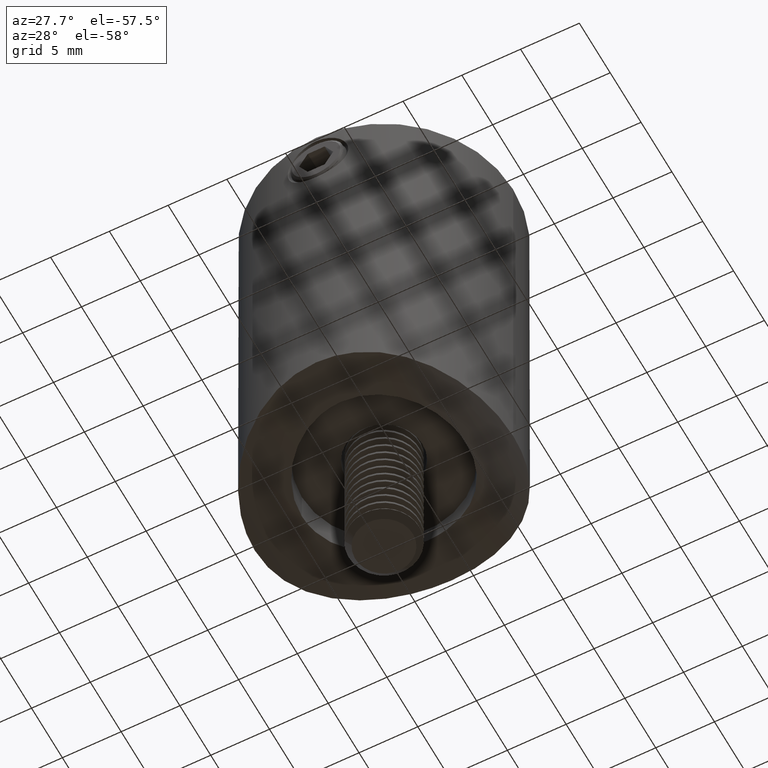
[diagram: clean part render]
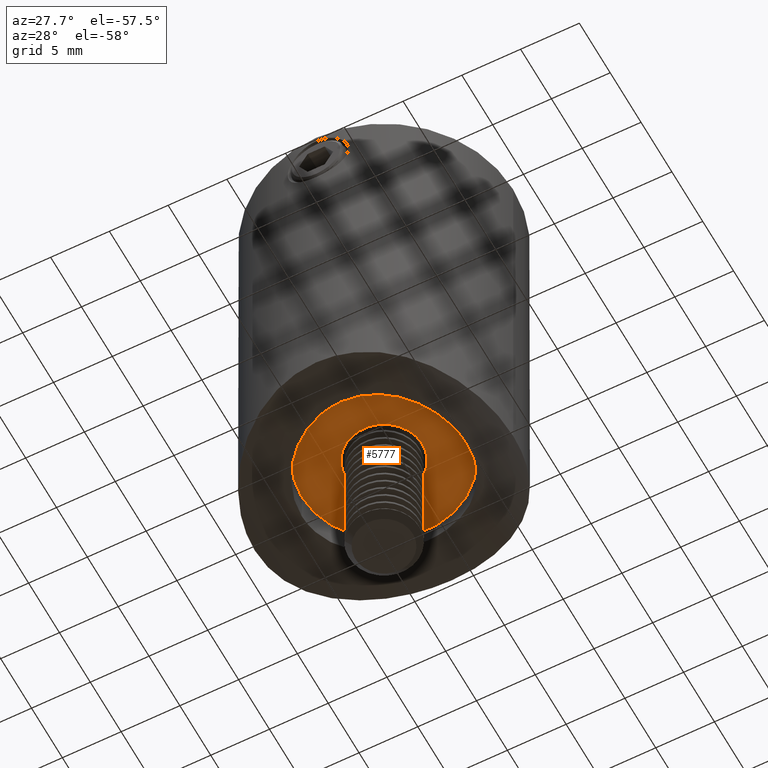
[diagram: same view with one face highlighted and labeled with its STEP entity id]
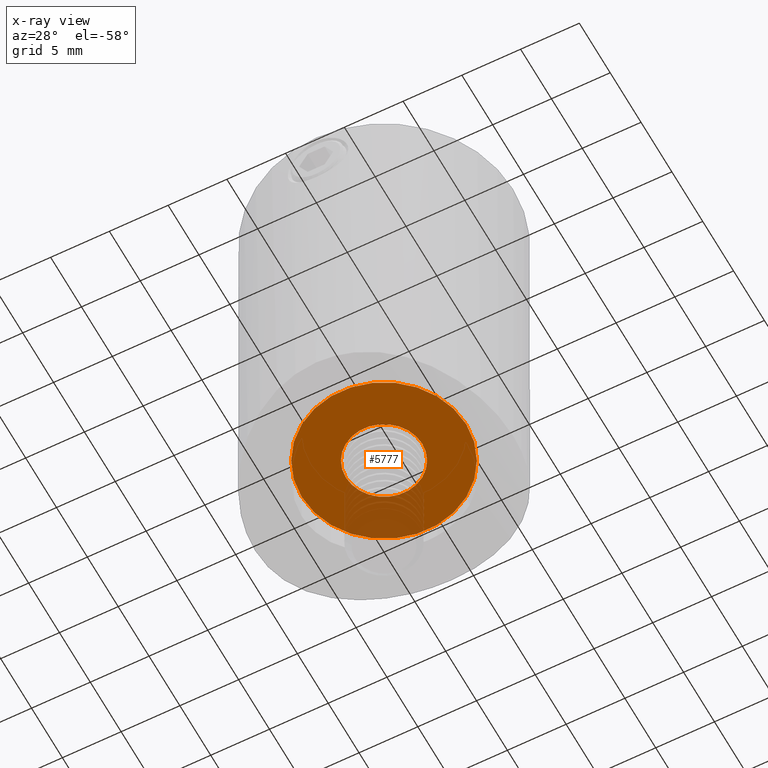
[diagram: x-ray of the same camera — body ghosted, the highlighted face saturated]
A machine part, auxiliary view. The second image highlights one B-rep face of the part: STEP entity #5777.
The next image is the same camera in x-ray: the body ghosted, the highlighted face saturated — about 20% of this face is hidden behind the body in this view.
In plain terms, the highlighted planar face has unit normal (0, 0, -1).
Its self-contained STEP definition (entity closure, byte-faithful):
#59 = CIRCLE ( 'NONE', #17455, 6.999999999999999112 ) ;
#435 = EDGE_LOOP ( 'NONE', ( #16190, #12056 ) ) ;
#499 = EDGE_CURVE ( 'NONE', #1033, #2189, #12387, .T. ) ;
#1011 = CIRCLE ( 'NONE', #11100, 6.999999999999999112 ) ;
#1033 = VERTEX_POINT ( 'NONE', #8632 ) ;
#1445 = DIRECTION ( 'NONE',  ( -0.000000000000000000, -0.000000000000000000, -1.000000000000000000 ) ) ;
#1529 = DIRECTION ( 'NONE',  ( -1.000000000000000000, 0.000000000000000000, 0.000000000000000000 ) ) ;
#1770 = EDGE_CURVE ( 'NONE', #2189, #1033, #4948, .T. ) ;
#1828 = AXIS2_PLACEMENT_3D ( 'NONE', #11561, #11494, #5063 ) ;
#2189 = VERTEX_POINT ( 'NONE', #17829 ) ;
#2648 = FACE_BOUND ( 'NONE', #15177, .T. ) ;
#3233 = DIRECTION ( 'NONE',  ( -0.000000000000000000, -0.000000000000000000, -1.000000000000000000 ) ) ;
#3276 = VERTEX_POINT ( 'NONE', #6957 ) ;
#3419 = AXIS2_PLACEMENT_3D ( 'NONE', #12337, #1445, #10220 ) ;
#3615 = ORIENTED_EDGE ( 'NONE', *, *, #499, .F. ) ;
#4948 = CIRCLE ( 'NONE', #3419, 3.250000000000000000 ) ;
#5063 = DIRECTION ( 'NONE',  ( -1.000000000000000000, 0.000000000000000000, 0.000000000000000000 ) ) ;
#5777 = ADVANCED_FACE ( 'NONE', ( #9080, #2648 ), #12862, .T. ) ;
#6957 = CARTESIAN_POINT ( 'NONE',  ( -6.999999999999999112, 0.000000000000000000, 1.500000000000000000 ) ) ;
#7954 = VERTEX_POINT ( 'NONE', #8591 ) ;
#8591 = CARTESIAN_POINT ( 'NONE',  ( 6.999999999999999112, 8.572527594031472204E-16, 1.500000000000000000 ) ) ;
#8632 = CARTESIAN_POINT ( 'NONE',  ( 3.250000000000000000, 3.980102097228897738E-16, 1.500000000000000000 ) ) ;
#9041 = DIRECTION ( 'NONE',  ( -1.000000000000000000, 0.000000000000000000, 0.000000000000000000 ) ) ;
#9080 = FACE_OUTER_BOUND ( 'NONE', #435, .T. ) ;
#10220 = DIRECTION ( 'NONE',  ( -1.000000000000000000, 0.000000000000000000, 0.000000000000000000 ) ) ;
#11100 = AXIS2_PLACEMENT_3D ( 'NONE', #12204, #12138, #9041 ) ;
#11165 = ORIENTED_EDGE ( 'NONE', *, *, #1770, .F. ) ;
#11494 = DIRECTION ( 'NONE',  ( -0.000000000000000000, -0.000000000000000000, -1.000000000000000000 ) ) ;
#11561 = CARTESIAN_POINT ( 'NONE',  ( 0.000000000000000000, 0.000000000000000000, 1.500000000000000000 ) ) ;
#12056 = ORIENTED_EDGE ( 'NONE', *, *, #12583, .T. ) ;
#12138 = DIRECTION ( 'NONE',  ( -0.000000000000000000, -0.000000000000000000, -1.000000000000000000 ) ) ;
#12204 = CARTESIAN_POINT ( 'NONE',  ( 0.000000000000000000, 0.000000000000000000, 1.500000000000000000 ) ) ;
#12337 = CARTESIAN_POINT ( 'NONE',  ( 0.000000000000000000, 0.000000000000000000, 1.500000000000000000 ) ) ;
#12387 = CIRCLE ( 'NONE', #1828, 3.250000000000000000 ) ;
#12583 = EDGE_CURVE ( 'NONE', #7954, #3276, #1011, .T. ) ;
#12862 = PLANE ( 'NONE',  #19596 ) ;
#13200 = EDGE_CURVE ( 'NONE', #3276, #7954, #59, .T. ) ;
#15177 = EDGE_LOOP ( 'NONE', ( #11165, #3615 ) ) ;
#15880 = CARTESIAN_POINT ( 'NONE',  ( 0.000000000000000000, 0.000000000000000000, 1.500000000000000000 ) ) ;
#16121 = CARTESIAN_POINT ( 'NONE',  ( 0.000000000000000000, 3.250000000000000000, 1.500000000000000000 ) ) ;
#16189 = DIRECTION ( 'NONE',  ( -1.000000000000000000, 0.000000000000000000, 0.000000000000000000 ) ) ;
#16190 = ORIENTED_EDGE ( 'NONE', *, *, #13200, .T. ) ;
#17455 = AXIS2_PLACEMENT_3D ( 'NONE', #15880, #3233, #1529 ) ;
#17829 = CARTESIAN_POINT ( 'NONE',  ( -3.250000000000000000, 0.000000000000000000, 1.500000000000000000 ) ) ;
#19486 = DIRECTION ( 'NONE',  ( -0.000000000000000000, 0.000000000000000000, -1.000000000000000000 ) ) ;
#19596 = AXIS2_PLACEMENT_3D ( 'NONE', #16121, #19486, #16189 ) ;